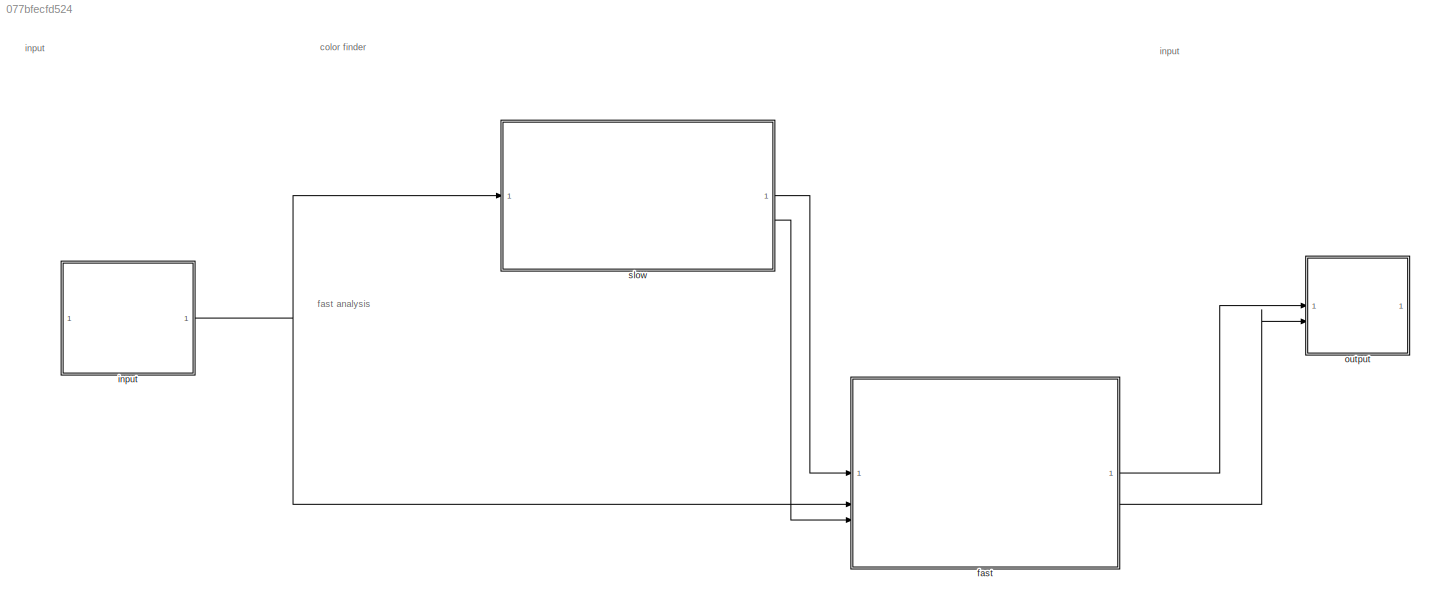
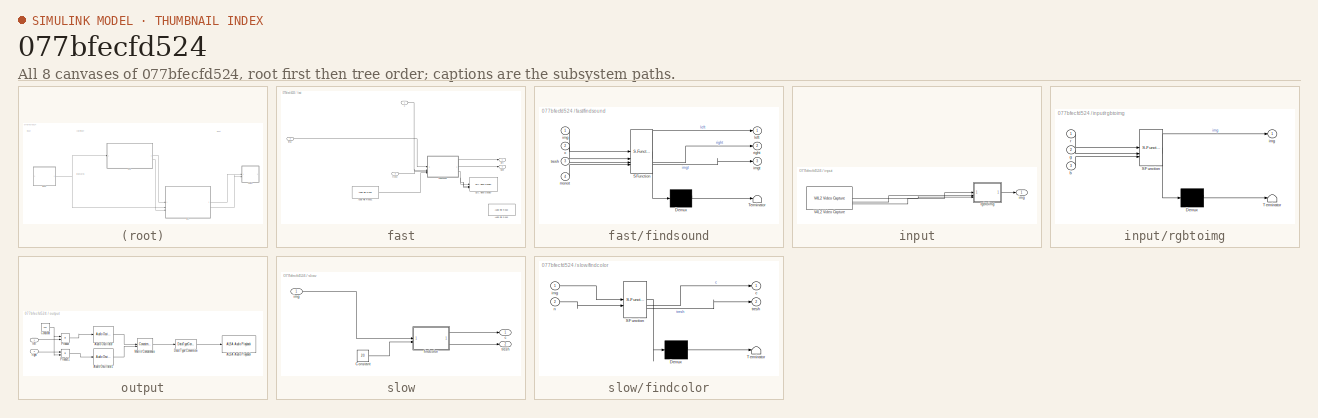
[diagram: thumbnail index - all 8 canvases of the model, root first then tree order]
MODEL slx_077bfecfd524
KIND model
CONFIG AbsTol = auto
CONFIG EnableMultiTasking = on
CONFIG FixedStep = auto
CONFIG MaxStep = auto
CONFIG MinStep = auto
CONFIG RelTol = 1e-3
CONFIG SampleTimeConstraint = Unconstrained
CONFIG SolverName = FixedStepAuto
CONFIG StartTime = 0.0
CONFIG StopTime = 100.0
BLOCK [SubSystem] fast
  TreatAsAtomicUnit = on
BLOCK [Reference] fast/Audio File Read  REF=raspberrypiAVlib/Audio File Read
  Commented = on
  SourceBlock = raspberrypiAVlib/Audio File Read
  SourceType = codertarget.raspi.internal.RaspiAudioFileRead
BLOCK [Reference] fast/Audio File Read1  REF=raspberrypiAVlib/Audio File Read
  Commented = on
  SourceBlock = raspberrypiAVlib/Audio File Read
  SourceType = codertarget.raspi.internal.RaspiAudioFileRead
BLOCK [Reference] fast/SDL Video Display  REF=raspberrypiAVlib/SDL Video Display
  SourceBlock = raspberrypiAVlib/SDL Video Display
  SourceType = SDL Video Display
BLOCK [Inport] fast/c
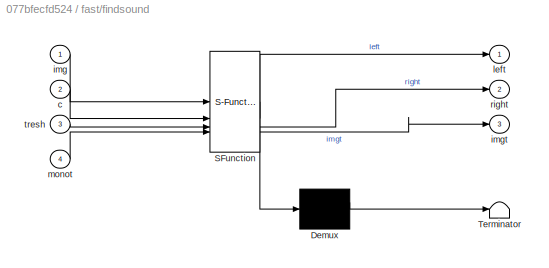
BLOCK [SubSystem] fast/findsound
  ErrorFcn = Stateflow.Translate.translate
  LibrarySourceBlock = simulink/User-Defined\nFunctions/MATLAB Function
  PermitHierarchicalResolution = ExplicitOnly
  SFBlockType = MATLAB Function
  TreatAsAtomicUnit = on
BLOCK [Demux] fast/findsound/ Demux 
  Outputs = 1
BLOCK [S-Function] fast/findsound/ SFunction 
  EnableBusSupport = on
  FunctionName = sf_sfun
  PortCounts = [4 4]
  SFcnIsStateOwnerBlock = off
  SFunctionDeploymentMode = off
  Tag = Stateflow S-Function 4
BLOCK [Terminator] fast/findsound/ Terminator 
BLOCK [Inport] fast/findsound/c
  Port = 2
BLOCK [Inport] fast/findsound/img
BLOCK [Outport] fast/findsound/imgt
  Port = 3
BLOCK [Outport] fast/findsound/left
BLOCK [Inport] fast/findsound/monot
  Port = 4
BLOCK [Outport] fast/findsound/right
  Port = 2
BLOCK [Inport] fast/findsound/tresh
  Port = 3
BLOCK [Inport] fast/img
  Port = 2
BLOCK [Outport] fast/left
BLOCK [Outport] fast/right
  Port = 2
BLOCK [Inport] fast/tresh
  Port = 3
BLOCK [SubSystem] input
  TreatAsAtomicUnit = on
BLOCK [Reference] input/V4L2 Video Capture  REF=raspberrypiAVlib/V4L2 Video Capture
  SourceBlock = raspberrypiAVlib/V4L2 Video Capture
  SourceType = codertarget.raspi.internal.Raspiv4l2Capture
BLOCK [Outport] input/img
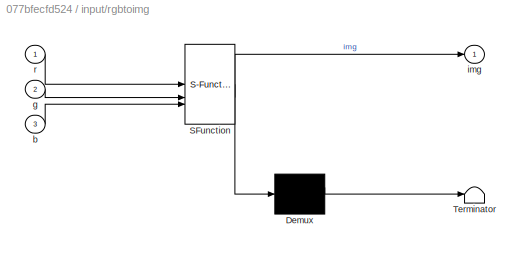
BLOCK [SubSystem] input/rgbtoimg
  ErrorFcn = Stateflow.Translate.translate
  LibrarySourceBlock = simulink/User-Defined\nFunctions/MATLAB Function
  PermitHierarchicalResolution = ExplicitOnly
  SFBlockType = MATLAB Function
  TreatAsAtomicUnit = on
BLOCK [Demux] input/rgbtoimg/ Demux 
  Outputs = 1
BLOCK [S-Function] input/rgbtoimg/ SFunction 
  EnableBusSupport = on
  FunctionName = sf_sfun
  PortCounts = [3 2]
  SFcnIsStateOwnerBlock = off
  SFunctionDeploymentMode = off
  Tag = Stateflow S-Function 1
BLOCK [Terminator] input/rgbtoimg/ Terminator 
BLOCK [Inport] input/rgbtoimg/b
  Port = 3
BLOCK [Inport] input/rgbtoimg/g
  Port = 2
BLOCK [Outport] input/rgbtoimg/img
BLOCK [Inport] input/rgbtoimg/r
BLOCK [SubSystem] output
  TreatAsAtomicUnit = on
BLOCK [Reference] output/ALSA Audio Playback  REF=raspberrypiAVlib/ALSA Audio Playback
  SourceBlock = raspberrypiAVlib/ALSA Audio Playback
  SourceType = codertarget.raspi.internal.RaspiALSAAudioPlayback
BLOCK [Reference] output/Audio Oscillator  REF=audiosources/Audio Oscillator
  SourceBlock = audiosources/Audio Oscillator
  SourceType = audio.simulink.AudioOscillator
BLOCK [Reference] output/Audio Oscillator1  REF=audiosources/Audio Oscillator
  SourceBlock = audiosources/Audio Oscillator
  SourceType = audio.simulink.AudioOscillator
BLOCK [Constant] output/Constant
  Value = 200
BLOCK [DataTypeConversion] output/Data Type Conversion
  OutDataTypeStr = int16
  RndMeth = Floor
  SaturateOnIntegerOverflow = off
BLOCK [Concatenate] output/Matrix Concatenate
  ConcatenateDimension = 2
  Mode = Multidimensional array
BLOCK [Product] output/Product
BLOCK [Product] output/Product1
BLOCK [Inport] output/left
BLOCK [Inport] output/right
  Port = 2
BLOCK [SubSystem] slow
  TreatAsAtomicUnit = on
BLOCK [Constant] slow/Constant
  Value = 20
BLOCK [Outport] slow/c
BLOCK [SubSystem] slow/findcolor
  ErrorFcn = Stateflow.Translate.translate
  LibrarySourceBlock = simulink/User-Defined\nFunctions/MATLAB Function
  PermitHierarchicalResolution = ExplicitOnly
  SFBlockType = MATLAB Function
  TreatAsAtomicUnit = on
BLOCK [Demux] slow/findcolor/ Demux 
  Outputs = 1
BLOCK [S-Function] slow/findcolor/ SFunction 
  EnableBusSupport = on
  FunctionName = sf_sfun
  PortCounts = [2 3]
  SFcnIsStateOwnerBlock = off
  SFunctionDeploymentMode = off
  Tag = Stateflow S-Function 2
BLOCK [Terminator] slow/findcolor/ Terminator 
BLOCK [Outport] slow/findcolor/c
BLOCK [Inport] slow/findcolor/img
BLOCK [Inport] slow/findcolor/n
  Port = 2
BLOCK [Outport] slow/findcolor/tresh
  Port = 2
BLOCK [Inport] slow/img
BLOCK [Outport] slow/tresh
  Port = 2
ANNOTATION (root): color finder
ANNOTATION (root): fast analysis
ANNOTATION (root): input
LINE fast/Audio File Read1:1 -> fast/findsound:4
LINE fast/c:1 -> fast/findsound:2
LINE fast/findsound:1 -> fast/left:1
LINE fast/findsound:2 -> fast/right:1
NET fast/findsound:3 -> fast/SDL Video Display:1, fast/SDL Video Display:2, fast/SDL Video Display:3
LINE fast/img:1 -> fast/findsound:1
LINE fast/tresh:1 -> fast/findsound:3
LINE fast:1 -> output:1
LINE fast:2 -> output:2
LINE input/V4L2 Video Capture:1 -> input/rgbtoimg:1
LINE input/V4L2 Video Capture:2 -> input/rgbtoimg:2
LINE input/V4L2 Video Capture:3 -> input/rgbtoimg:3
LINE input/rgbtoimg:1 -> input/img:1
NET input:1 -> fast:2, slow:1
LINE output/Audio Oscillator1:1 -> output/Matrix Concatenate:2
LINE output/Audio Oscillator:1 -> output/Matrix Concatenate:1
NET output/Constant:1 -> output/Product1:2, output/Product:1
LINE output/Data Type Conversion:1 -> output/ALSA Audio Playback:1
LINE output/Matrix Concatenate:1 -> output/Data Type Conversion:1
LINE output/Product1:1 -> output/Audio Oscillator1:1
LINE output/Product:1 -> output/Audio Oscillator:1
LINE output/left:1 -> output/Product:2
LINE output/right:1 -> output/Product1:1
LINE slow/Constant:1 -> slow/findcolor:2
LINE slow/findcolor:1 -> slow/c:1
LINE slow/findcolor:2 -> slow/tresh:1
LINE slow/img:1 -> slow/findcolor:1
LINE slow:1 -> fast:1
LINE slow:2 -> fast:3
note: NET lines group one-source signal fan-out (src -> all destinations, sorted); 1:1 wires keep LINE
CHART input/rgbtoimg states=1 transitions=1
  STATE_LABEL 'eML_blk_kernel()'
  STATE_LABEL 'SCRIPT:\nfunction img= rgbtoimg(r,g,b)\n    S = size(r);\n    %As in matlab we deal with images with dimentions (n,m,3), and that\n    %simulink input is 3 (n,m) image, we transpose the input to match with\n    %the matlab code\n    imgt=zeros(S(1,1),S(1,2),3);\n    imgt(:,:,1) = r(:,:);\n    imgt(:,:,2) = g(:,:);\n    imgt(:,:,3) = b(:,:);\n\n    %We apply some average filter to make the k mean easier\n    h...<+180ch>'
CHART slow/findcolor states=1 transitions=1
  STATE_LABEL 'eML_blk_kernel()'
  STATE_LABEL "SCRIPT:\nfunction [c,tresh] = findcolor(img,n)\n    [img,map,D] = quantize(img,n); %quantizing the image\n\n    % Calculate every fit error for each linear regression \n    index = 0;\n    listlen = [];\n    listerr = [];\n\n    for i=1:n\n        [therror,len] = regressionlineair(img,i);\n        listerr = [listerr therror];\n        listlen = [listlen len];\n    end\n    minerror = max(listerr, [], 'all');\n  ...<+3227ch>"
CHART fast/findsound states=1 transitions=1
  STATE_LABEL 'eML_blk_kernel()'
  STATE_LABEL 'SCRIPT:\n\nfunction [left, right, imgt] = findsound(img,c,tresh, monot)\n%delete all the non line color imager and put the line in full white\nS = size(img);\nfor l=1:S(1,1)\n    for x=1:S(1,2)\n        tp=img(l,x,:);\n        if manorm(double([tp(1),tp(2),tp(3)])-c(1,:))>tresh\n            img(l,x,:) = [0,0,0];\n        else\n            img(l,x,:) = [255,255,255];\n        end\n\n    end\nend\n\n%grayify the ima...<+1600ch>'
CHART  states=0 transitions=0
CHART  states=0 transitions=0
CHART  states=0 transitions=0
